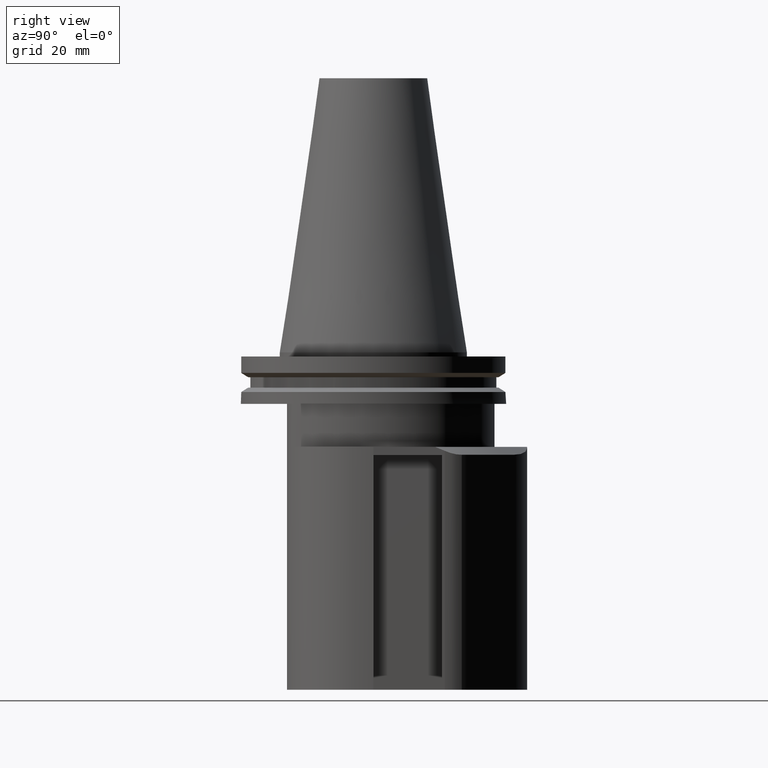
[diagram: clean part render]
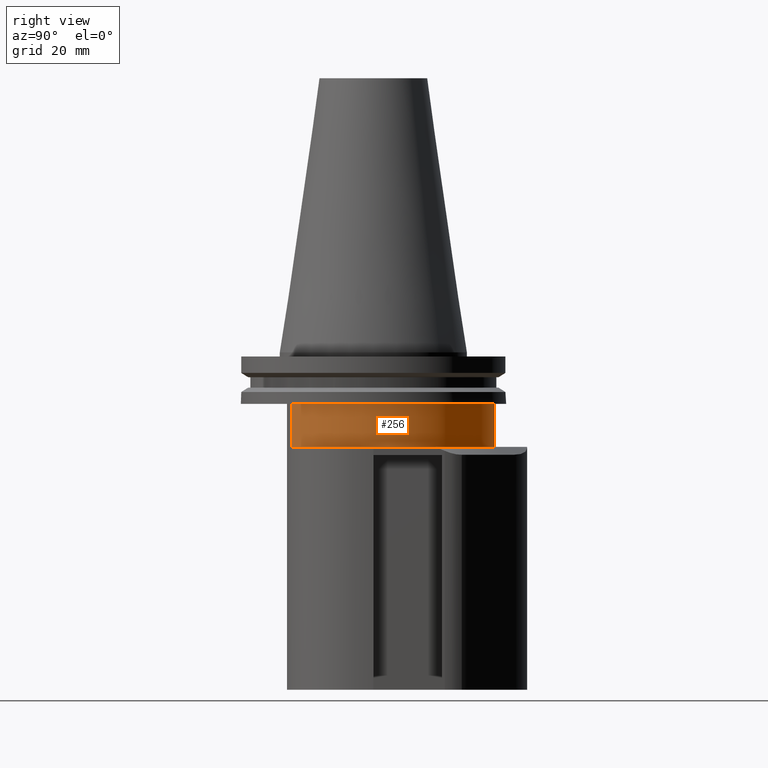
[diagram: same view with one face highlighted and labeled with its STEP entity id]
A machine part, right view. The second image highlights one B-rep face of the part: STEP entity #256.
In plain terms, the highlighted cylindrical surface (partial cylindrical patch) has radius 45 mm, axis along (-0, -0, -1).
Its self-contained STEP definition (entity closure, byte-faithful):
#199=EDGE_CURVE('Unnamed[1]',#479,#480,#481,.T.);
#204=EDGE_CURVE('Unnamed[1]',#487,#479,#488,.T.);
#214=EDGE_CURVE('Unnamed[1]',#458,#487,#502,.T.);
#256=ADVANCED_FACE('Unnamed[1]',(#557),#558,.T.);
#315=EDGE_CURVE('Unnamed[1]',#458,#480,#630,.T.);
#458=VERTEX_POINT('',#829);
#479=VERTEX_POINT('',#856);
#480=VERTEX_POINT('',#857);
#481=LINE('',#858,#859);
#487=VERTEX_POINT('',#867);
#488=CIRCLE('',#868,45.0000000000001);
#502=LINE('',#886,#887);
#557=FACE_OUTER_BOUND('',#973,.T.);
#558=CYLINDRICAL_SURFACE('',#974,45.0000000000001);
#630=CIRCLE('',#1092,45.0000000000001);
#829=CARTESIAN_POINT('',(-45.0000000000003,6.12323399573683E-015,-34.9999999999997));
#856=CARTESIAN_POINT('',(33.2608695652173,-30.3103044485799,-19.05));
#857=CARTESIAN_POINT('',(33.2608695652172,-30.3103044485799,-34.9999999999998));
#858=CARTESIAN_POINT('',(33.2608695652167,-30.3103044485801,-315.0));
#859=VECTOR('',#1273,1.0);
#867=CARTESIAN_POINT('',(-45.0000000000003,7.09988981805683E-015,-19.05));
#868=AXIS2_PLACEMENT_3D('',#1282,#1283,#1284);
#886=CARTESIAN_POINT('',(-45.0000000000016,8.41629461719802E-013,-315.0));
#887=VECTOR('',#1307,1.0);
#973=EDGE_LOOP('',(#1377,#1378,#1379,#1380));
#974=AXIS2_PLACEMENT_3D('',#1381,#1382,#1383);
#1092=AXIS2_PLACEMENT_3D('',#1463,#1464,#1465);
#1273=DIRECTION('',(1.22464679914735E-016,-6.12323399573677E-017,-1.0));
#1282=CARTESIAN_POINT('',(-1.69773425381521E-013,-1.16647607618782E-015,-19.05));
#1283=DIRECTION('',(-1.28076709777704E-015,-6.12323399573674E-017,-1.0));
#1284=DIRECTION('',(-1.0,1.83697019872103E-016,1.28076709777704E-015));
#1307=DIRECTION('',(-1.22464679914735E-016,6.12323399573677E-017,1.0));
#1377=ORIENTED_EDGE('',*,*,#214,.T.);
#1378=ORIENTED_EDGE('',*,*,#204,.T.);
#1379=ORIENTED_EDGE('',*,*,#199,.T.);
#1380=ORIENTED_EDGE('',*,*,#315,.F.);
#1381=CARTESIAN_POINT('',(-1.79987542986292E-013,-1.65480398734782E-015,-27.0249999999999));
#1382=DIRECTION('',(-1.28076709777704E-015,-6.12323399573674E-017,-1.0));
#1383=DIRECTION('',(-1.0,1.83697019872103E-016,1.28076709777704E-015));
#1463=CARTESIAN_POINT('',(-1.90201660591064E-013,-2.14313189850782E-015,-34.9999999999998));
#1464=DIRECTION('',(-1.28076709777704E-015,-6.12323399573674E-017,-1.0));
#1465=DIRECTION('',(-1.0,1.83697019872103E-016,1.28076709777704E-015));